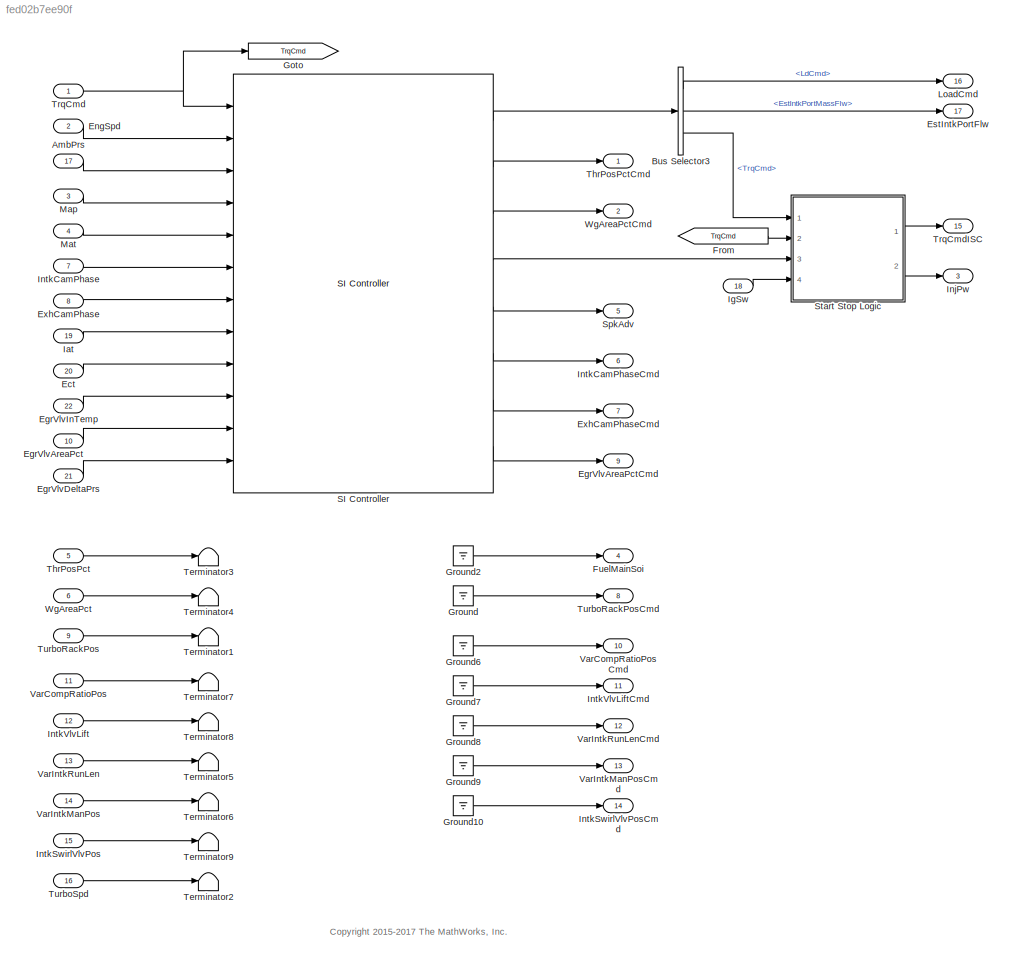
MODEL slx_fed02b7ee90f
KIND model
CONFIG AbsTol = auto
CONFIG EnableMultiTasking = on
CONFIG FixedStep = .01
CONFIG MaxStep = auto
CONFIG MinStep = auto
CONFIG RelTol = 1e-3
CONFIG SampleTimeConstraint = Unconstrained
CONFIG Solver = ode4
CONFIG SolverName = ode4
CONFIG StartTime = 0.0
CONFIG StopTime = inf
WORKSPACE source: MAT-file member
WORKSPACE AFRStoich = 14.6
BLOCK [Inport] AmbPrs
  IconDisplay = Port number
  Port = 17
BLOCK [BusSelector] Bus Selector3
  OutputAsBus = off
  OutputSignals = LdCmd,EstIntkPortMassFlw,TrqCmd
  Ports = [1, 3]
BLOCK [Inport] Ect
  IconDisplay = Port number
  Port = 20
  Unit = K
BLOCK [Inport] EgrVlvAreaPct
  IconDisplay = Port number
  Port = 10
  Unit = %
BLOCK [Outport] EgrVlvAreaPctCmd
  IconDisplay = Port number
  Port = 9
  Unit = %
BLOCK [Inport] EgrVlvDeltaPrs
  IconDisplay = Port number
  Port = 21
  Unit = Pa
BLOCK [Inport] EgrVlvInTemp
  IconDisplay = Port number
  Port = 22
  Unit = K
BLOCK [Inport] EngSpd
  IconDisplay = Port number
  Port = 2
BLOCK [Outport] EstIntkPortFlw
  IconDisplay = Port number
  Port = 17
BLOCK [Inport] ExhCamPhase
  IconDisplay = Port number
  Port = 8
BLOCK [Outport] ExhCamPhaseCmd
  IconDisplay = Port number
  Port = 7
BLOCK [From] From
  GotoTag = TrqCmd
BLOCK [Outport] FuelMainSoi
  IconDisplay = Port number
  Port = 4
  Unit = deg
BLOCK [Goto] Goto
  GotoTag = TrqCmd
BLOCK [Ground] Ground
BLOCK [Ground] Ground10
BLOCK [Ground] Ground2
BLOCK [Ground] Ground6
BLOCK [Ground] Ground7
BLOCK [Ground] Ground8
BLOCK [Ground] Ground9
BLOCK [Inport] Iat
  IconDisplay = Port number
  Port = 19
  Unit = K
BLOCK [Inport] IgSw
  IconDisplay = Port number
  Port = 18
BLOCK [Outport] InjPw
  IconDisplay = Port number
  Port = 3
  Unit = ms
BLOCK [Inport] IntkCamPhase
  IconDisplay = Port number
  Port = 7
BLOCK [Outport] IntkCamPhaseCmd
  IconDisplay = Port number
  Port = 6
BLOCK [Inport] IntkSwirlVlvPos
  IconDisplay = Port number
  Port = 15
BLOCK [Outport] IntkSwirlVlvPosCmd
  IconDisplay = Port number
  Port = 14
BLOCK [Inport] IntkVlvLift
  IconDisplay = Port number
  Port = 12
BLOCK [Outport] IntkVlvLiftCmd
  IconDisplay = Port number
  Port = 11
BLOCK [Outport] LoadCmd
  IconDisplay = Port number
  Port = 16
BLOCK [Inport] Map
  IconDisplay = Port number
  Port = 3
BLOCK [Inport] Mat
  IconDisplay = Port number
  Port = 4
BLOCK [Reference] SI Controller  REF=autolibengctrlr/SI Controller
  Ports = [12, 8]
  SourceBlock = autolibengctrlr/SI Controller
  SourceProductBaseCode = PW
  SourceProductName = Powertrain Blockset
  SourceType = SI Controller
BLOCK [Outport] SpkAdv
  IconDisplay = Port number
  Port = 5
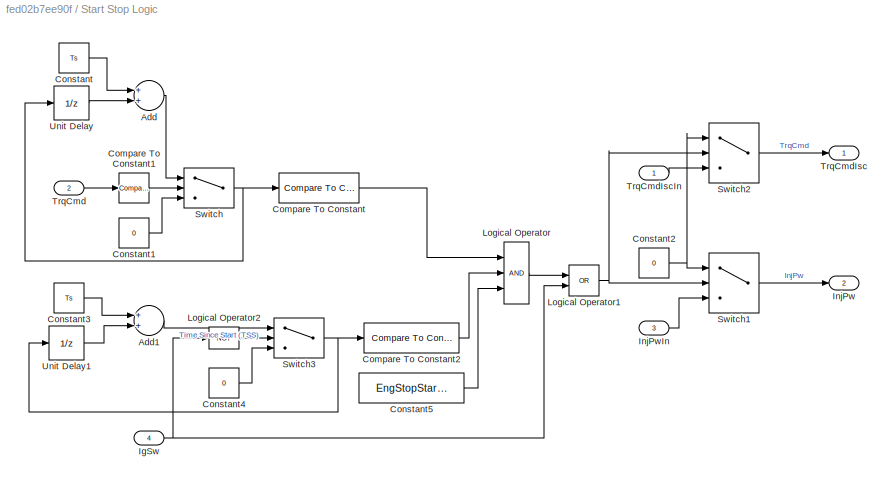
BLOCK [SubSystem] Start Stop Logic
  Ports = [4, 2]
  RequestExecContextInheritance = off
  TreatAsAtomicUnit = on
BLOCK [Sum] Start Stop Logic/Add
  InputSameDT = off
  OutDataTypeStr = Inherit: Inherit via internal rule
  Ports = [2, 1]
  SaturateOnIntegerOverflow = off
BLOCK [Sum] Start Stop Logic/Add1
  InputSameDT = off
  OutDataTypeStr = Inherit: Inherit via internal rule
  Ports = [2, 1]
  SaturateOnIntegerOverflow = off
BLOCK [Reference] Start Stop Logic/Compare To Constant  REF=simulink/Logic and Bit
Operations/Compare
To Constant
  Ports = [1, 1]
  SourceBlock = simulink/Logic and Bit\nOperations/Compare\nTo Constant
  SourceProductBaseCode = SL
  SourceProductName = Simulink
  SourceType = Compare To Constant
BLOCK [Reference] Start Stop Logic/Compare To Constant1  REF=simulink/Logic and Bit
Operations/Compare
To Constant
  Ports = [1, 1]
  SourceBlock = simulink/Logic and Bit\nOperations/Compare\nTo Constant
  SourceProductBaseCode = SL
  SourceProductName = Simulink
  SourceType = Compare To Constant
BLOCK [Reference] Start Stop Logic/Compare To Constant2  REF=simulink/Logic and Bit
Operations/Compare
To Constant
  Ports = [1, 1]
  SourceBlock = simulink/Logic and Bit\nOperations/Compare\nTo Constant
  SourceProductBaseCode = SL
  SourceProductName = Simulink
  SourceType = Compare To Constant
BLOCK [Constant] Start Stop Logic/Constant
  Value = Ts
BLOCK [Constant] Start Stop Logic/Constant1
  Value = 0
BLOCK [Constant] Start Stop Logic/Constant2
  Value = 0
BLOCK [Constant] Start Stop Logic/Constant3
  Value = Ts
BLOCK [Constant] Start Stop Logic/Constant4
  Value = 0
BLOCK [Constant] Start Stop Logic/Constant5
  Value = EngStopStartEnable
BLOCK [Inport] Start Stop Logic/IgSw
  IconDisplay = Port number
  Port = 4
BLOCK [Outport] Start Stop Logic/InjPw
  IconDisplay = Port number
  Port = 2
BLOCK [Inport] Start Stop Logic/InjPwIn
  IconDisplay = Port number
  Port = 3
BLOCK [Logic] Start Stop Logic/Logical Operator
  AllPortsSameDT = off
  Inputs = 3
  OutDataTypeStr = boolean
  Ports = [3, 1]
BLOCK [Logic] Start Stop Logic/Logical Operator1
  AllPortsSameDT = off
  Operator = OR
  OutDataTypeStr = boolean
  Ports = [2, 1]
BLOCK [Logic] Start Stop Logic/Logical Operator2
  AllPortsSameDT = off
  Operator = NOT
  OutDataTypeStr = boolean
  Ports = [1, 1]
BLOCK [Switch] Start Stop Logic/Switch
  Criteria = u2 ~= 0
  InputSameDT = off
  SaturateOnIntegerOverflow = off
BLOCK [Switch] Start Stop Logic/Switch1
  Criteria = u2 ~= 0
  InputSameDT = off
  SaturateOnIntegerOverflow = off
BLOCK [Switch] Start Stop Logic/Switch2
  Criteria = u2 ~= 0
  InputSameDT = off
  SaturateOnIntegerOverflow = off
BLOCK [Switch] Start Stop Logic/Switch3
  Criteria = u2 ~= 0
  InputSameDT = off
  SaturateOnIntegerOverflow = off
BLOCK [Inport] Start Stop Logic/TrqCmd
  IconDisplay = Port number
  Port = 2
BLOCK [Outport] Start Stop Logic/TrqCmdIsc
  IconDisplay = Port number
BLOCK [Inport] Start Stop Logic/TrqCmdIscIn
  IconDisplay = Port number
BLOCK [UnitDelay] Start Stop Logic/Unit Delay
  InitialCondition = EngStopTime+1
  InputProcessing = Elements as channels (sample based)
  SampleTime = -1
BLOCK [UnitDelay] Start Stop Logic/Unit Delay1
  InitialCondition = EngStopTime+1
  InputProcessing = Elements as channels (sample based)
  SampleTime = -1
BLOCK [Terminator] Terminator1
BLOCK [Terminator] Terminator2
BLOCK [Terminator] Terminator3
BLOCK [Terminator] Terminator4
BLOCK [Terminator] Terminator5
BLOCK [Terminator] Terminator6
BLOCK [Terminator] Terminator7
BLOCK [Terminator] Terminator8
BLOCK [Terminator] Terminator9
BLOCK [Inport] ThrPosPct
  IconDisplay = Port number
  Port = 5
  Unit = %
BLOCK [Outport] ThrPosPctCmd
  IconDisplay = Port number
BLOCK [Inport] TrqCmd
  IconDisplay = Port number
BLOCK [Outport] TrqCmdISC
  IconDisplay = Port number
  Port = 15
  Unit = N*m
BLOCK [Inport] TurboRackPos
  IconDisplay = Port number
  Port = 9
  Unit = 1
BLOCK [Outport] TurboRackPosCmd
  IconDisplay = Port number
  Port = 8
  Unit = 1
BLOCK [Inport] TurboSpd
  IconDisplay = Port number
  Port = 16
  Unit = rpm
BLOCK [Inport] VarCompRatioPos
  IconDisplay = Port number
  Port = 11
BLOCK [Outport] VarCompRatioPosCmd
  IconDisplay = Port number
  Port = 10
BLOCK [Inport] VarIntkManPos
  IconDisplay = Port number
  Port = 14
BLOCK [Outport] VarIntkManPosCmd
  IconDisplay = Port number
  Port = 13
BLOCK [Inport] VarIntkRunLen
  IconDisplay = Port number
  Port = 13
BLOCK [Outport] VarIntkRunLenCmd
  IconDisplay = Port number
  Port = 12
BLOCK [Inport] WgAreaPct
  IconDisplay = Port number
  Port = 6
  Unit = %
BLOCK [Outport] WgAreaPctCmd
  IconDisplay = Port number
  Port = 2
ANNOTATION (root): <copyright redacted>
LINE AmbPrs:1 -> SI Controller:3
LINE Bus Selector3:1 -> LoadCmd:1
LINE Bus Selector3:2 -> EstIntkPortFlw:1
LINE Bus Selector3:3 -> Start Stop Logic:1
LINE Ect:1 -> SI Controller:9
LINE EgrVlvAreaPct:1 -> SI Controller:11
LINE EgrVlvDeltaPrs:1 -> SI Controller:12
LINE EgrVlvInTemp:1 -> SI Controller:10
LINE EngSpd:1 -> SI Controller:2
LINE ExhCamPhase:1 -> SI Controller:7
LINE From:1 -> Start Stop Logic:2
LINE Ground10:1 -> IntkSwirlVlvPosCmd:1
LINE Ground2:1 -> FuelMainSoi:1
LINE Ground6:1 -> VarCompRatioPosCmd:1
LINE Ground7:1 -> IntkVlvLiftCmd:1
LINE Ground8:1 -> VarIntkRunLenCmd:1
LINE Ground9:1 -> VarIntkManPosCmd:1
LINE Ground:1 -> TurboRackPosCmd:1
LINE Iat:1 -> SI Controller:8
LINE IgSw:1 -> Start Stop Logic:4
LINE IntkCamPhase:1 -> SI Controller:6
LINE IntkSwirlVlvPos:1 -> Terminator9:1
LINE IntkVlvLift:1 -> Terminator8:1
LINE Map:1 -> SI Controller:4
LINE Mat:1 -> SI Controller:5
LINE SI Controller:1 -> Bus Selector3:1
LINE SI Controller:2 -> ThrPosPctCmd:1
LINE SI Controller:3 -> WgAreaPctCmd:1
LINE SI Controller:4 -> Start Stop Logic:3
LINE SI Controller:5 -> SpkAdv:1
LINE SI Controller:6 -> IntkCamPhaseCmd:1
LINE SI Controller:7 -> ExhCamPhaseCmd:1
LINE SI Controller:8 -> EgrVlvAreaPctCmd:1
LINE Start Stop Logic/Add1:1 -> Start Stop Logic/Switch3:1
LINE Start Stop Logic/Add:1 -> Start Stop Logic/Switch:1
LINE Start Stop Logic/Compare To Constant1:1 -> Start Stop Logic/Switch:2
LINE Start Stop Logic/Compare To Constant2:1 -> Start Stop Logic/Logical Operator:2
LINE Start Stop Logic/Compare To Constant:1 -> Start Stop Logic/Logical Operator:1
LINE Start Stop Logic/Constant1:1 -> Start Stop Logic/Switch:3
NET Start Stop Logic/Constant2:1 -> Start Stop Logic/Switch1:1, Start Stop Logic/Switch2:1
LINE Start Stop Logic/Constant3:1 -> Start Stop Logic/Add1:1
LINE Start Stop Logic/Constant4:1 -> Start Stop Logic/Switch3:3
LINE Start Stop Logic/Constant5:1 -> Start Stop Logic/Logical Operator:3
LINE Start Stop Logic/Constant:1 -> Start Stop Logic/Add:1
NET Start Stop Logic/IgSw:1 -> Start Stop Logic/Logical Operator1:2, Start Stop Logic/Logical Operator2:1
LINE Start Stop Logic/InjPwIn:1 -> Start Stop Logic/Switch1:3
NET Start Stop Logic/Logical Operator1:1 -> Start Stop Logic/Switch1:2, Start Stop Logic/Switch2:2
LINE Start Stop Logic/Logical Operator2:1 -> Start Stop Logic/Switch3:2
LINE Start Stop Logic/Logical Operator:1 -> Start Stop Logic/Logical Operator1:1
LINE Start Stop Logic/Switch1:1 -> Start Stop Logic/InjPw:1
LINE Start Stop Logic/Switch2:1 -> Start Stop Logic/TrqCmdIsc:1
NET Start Stop Logic/Switch3:1 -> Start Stop Logic/Compare To Constant2:1, Start Stop Logic/Unit Delay1:1
NET Start Stop Logic/Switch:1 -> Start Stop Logic/Compare To Constant:1, Start Stop Logic/Unit Delay:1
LINE Start Stop Logic/TrqCmd:1 -> Start Stop Logic/Compare To Constant1:1
LINE Start Stop Logic/TrqCmdIscIn:1 -> Start Stop Logic/Switch2:3
LINE Start Stop Logic/Unit Delay1:1 -> Start Stop Logic/Add1:2
LINE Start Stop Logic/Unit Delay:1 -> Start Stop Logic/Add:2
LINE Start Stop Logic:1 -> TrqCmdISC:1
LINE Start Stop Logic:2 -> InjPw:1
LINE ThrPosPct:1 -> Terminator3:1
NET TrqCmd:1 -> Goto:1, SI Controller:1
LINE TurboRackPos:1 -> Terminator1:1
LINE TurboSpd:1 -> Terminator2:1
LINE VarCompRatioPos:1 -> Terminator7:1
LINE VarIntkManPos:1 -> Terminator6:1
LINE VarIntkRunLen:1 -> Terminator5:1
LINE WgAreaPct:1 -> Terminator4:1
note: NET lines group one-source signal fan-out (src -> all destinations, sorted); 1:1 wires keep LINE
